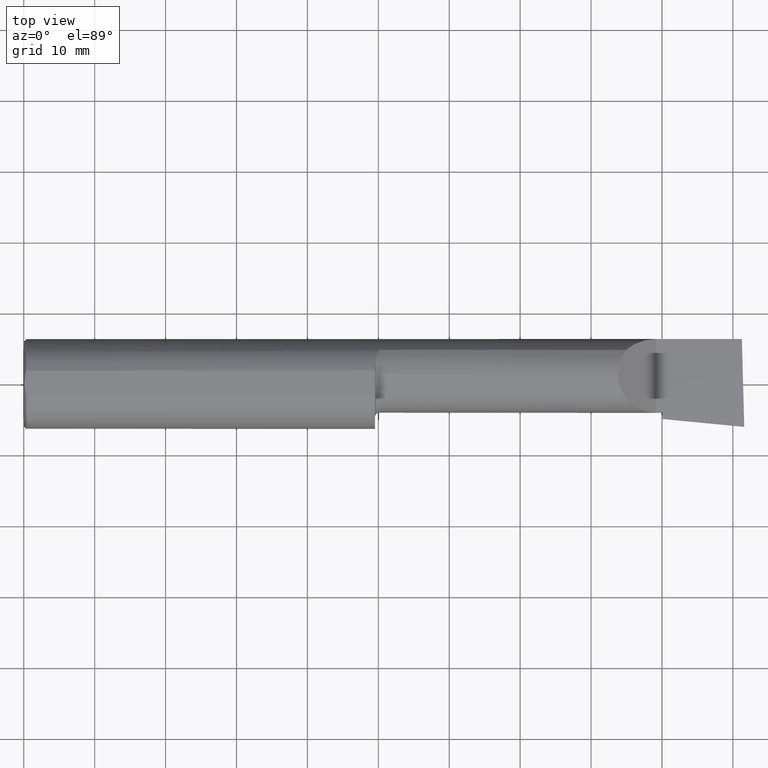
[diagram: clean part render]
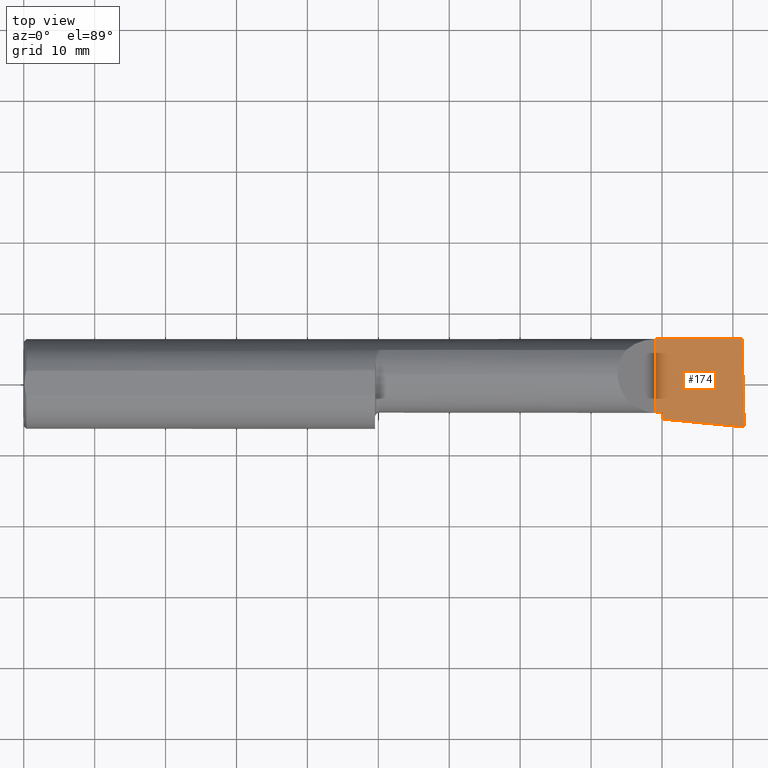
[diagram: same view with one face highlighted and labeled with its STEP entity id]
A machine part, top view. The second image highlights one B-rep face of the part: STEP entity #174.
In plain terms, the highlighted planar face has unit normal (-0, 0, -1).
Its self-contained STEP definition (entity closure, byte-faithful):
#55 = VECTOR ( 'NONE', #425, 39.37007874015748143 ) ;
#63 = ORIENTED_EDGE ( 'NONE', *, *, #65, .F. ) ;
#65 = EDGE_CURVE ( 'NONE', #300, #619, #631, .T. ) ;
#72 = VECTOR ( 'NONE', #515, 39.37007874015748143 ) ;
#78 = DIRECTION ( 'NONE',  ( 0.9953961983671787417, -0.09584575252022418945, -1.501092988330048720E-16 ) ) ;
#126 = CARTESIAN_POINT ( 'NONE',  ( 3.509999999999999787, 0.2498499999999998222, -6.245698675651498620E-17 ) ) ;
#136 = EDGE_LOOP ( 'NONE', ( #63, #140, #591, #603, #355, #724 ) ) ;
#140 = ORIENTED_EDGE ( 'NONE', *, *, #587, .F. ) ;
#144 = LINE ( 'NONE', #380, #205 ) ;
#153 = VECTOR ( 'NONE', #531, 39.37007874015748143 ) ;
#174 = ADVANCED_FACE ( 'NONE', ( #358 ), #286, .F. ) ;
#182 = CARTESIAN_POINT ( 'NONE',  ( 7.089685198749692867E-32, 0.2498499999999999610, 4.685946446163635703E-16 ) ) ;
#189 = CARTESIAN_POINT ( 'NONE',  ( 4.000000000000001776, -0.2381500000000004447, 4.609993489308444058E-16 ) ) ;
#205 = VECTOR ( 'NONE', #554, 39.37007874015748143 ) ;
#222 = VECTOR ( 'NONE', #335, 39.37007874015748143 ) ;
#232 = DIRECTION ( 'NONE',  ( -1.512967610748942321E-16, 0.000000000000000000, -1.000000000000000000 ) ) ;
#240 = LINE ( 'NONE', #648, #153 ) ;
#241 = CARTESIAN_POINT ( 'NONE',  ( 3.544999999999999929, -0.1601499999999999868, 4.685946446163635703E-16 ) ) ;
#270 = CARTESIAN_POINT ( 'NONE',  ( 7.089685198749692867E-32, -0.1601500000000000701, 4.685946446163635703E-16 ) ) ;
#286 = PLANE ( 'NONE',  #533 ) ;
#291 = VERTEX_POINT ( 'NONE', #241 ) ;
#297 = LINE ( 'NONE', #182, #55 ) ;
#300 = VERTEX_POINT ( 'NONE', #423 ) ;
#307 = EDGE_CURVE ( 'NONE', #433, #619, #723, .T. ) ;
#335 = DIRECTION ( 'NONE',  ( 0.02677973311239339668, -0.9996413586354002678, -3.995712686884936666E-18 ) ) ;
#355 = ORIENTED_EDGE ( 'NONE', *, *, #362, .T. ) ;
#358 = FACE_OUTER_BOUND ( 'NONE', #136, .T. ) ;
#362 = EDGE_CURVE ( 'NONE', #291, #433, #144, .T. ) ;
#369 = CARTESIAN_POINT ( 'NONE',  ( 4.001130543297605868, -0.2382588589380726651, -1.367634472223958767E-16 ) ) ;
#380 = CARTESIAN_POINT ( 'NONE',  ( 3.544999999999999929, -0.2500000000000000555, -6.775237339413629936E-17 ) ) ;
#405 = CARTESIAN_POINT ( 'NONE',  ( 4.000317226026191442, -0.2499915017238489578, -1.366403949535045289E-16 ) ) ;
#423 = CARTESIAN_POINT ( 'NONE',  ( 3.986926801651458074, 0.2498499999999998500, -1.346424553798598529E-16 ) ) ;
#425 = DIRECTION ( 'NONE',  ( 1.000000000000000000, 0.000000000000000000, 0.000000000000000000 ) ) ;
#433 = VERTEX_POINT ( 'NONE', #508 ) ;
#468 = DIRECTION ( 'NONE',  ( -1.000000000000000000, 0.000000000000000000, 1.512967610748942321E-16 ) ) ;
#470 = EDGE_CURVE ( 'NONE', #479, #291, #628, .T. ) ;
#479 = VERTEX_POINT ( 'NONE', #570 ) ;
#508 = CARTESIAN_POINT ( 'NONE',  ( 3.544999999999999929, -0.1943384830701201105, 4.684692457885201525E-16 ) ) ;
#515 = DIRECTION ( 'NONE',  ( 1.000000000000000000, 0.000000000000000000, 0.000000000000000000 ) ) ;
#527 = VERTEX_POINT ( 'NONE', #126 ) ;
#531 = DIRECTION ( 'NONE',  ( -0.000000000000000000, 1.000000000000000000, -0.000000000000000000 ) ) ;
#533 = AXIS2_PLACEMENT_3D ( 'NONE', #598, #232, #468 ) ;
#554 = DIRECTION ( 'NONE',  ( 0.000000000000000000, -1.000000000000000000, 0.000000000000000000 ) ) ;
#569 = VECTOR ( 'NONE', #78, 39.37007874015748143 ) ;
#570 = CARTESIAN_POINT ( 'NONE',  ( 3.509999999999999787, -0.1601500000000001256, -6.245698675651498620E-17 ) ) ;
#587 = EDGE_CURVE ( 'NONE', #527, #300, #297, .T. ) ;
#591 = ORIENTED_EDGE ( 'NONE', *, *, #613, .F. ) ;
#598 = CARTESIAN_POINT ( 'NONE',  ( 4.000000000000000000, -0.2500000000000000555, -1.365923996832131609E-16 ) ) ;
#603 = ORIENTED_EDGE ( 'NONE', *, *, #470, .T. ) ;
#613 = EDGE_CURVE ( 'NONE', #479, #527, #240, .T. ) ;
#619 = VERTEX_POINT ( 'NONE', #189 ) ;
#628 = LINE ( 'NONE', #270, #72 ) ;
#631 = LINE ( 'NONE', #405, #222 ) ;
#648 = CARTESIAN_POINT ( 'NONE',  ( 3.509999999999999787, -0.2500000000000000555, -6.245698675651498620E-17 ) ) ;
#723 = LINE ( 'NONE', #369, #569 ) ;
#724 = ORIENTED_EDGE ( 'NONE', *, *, #307, .T. ) ;